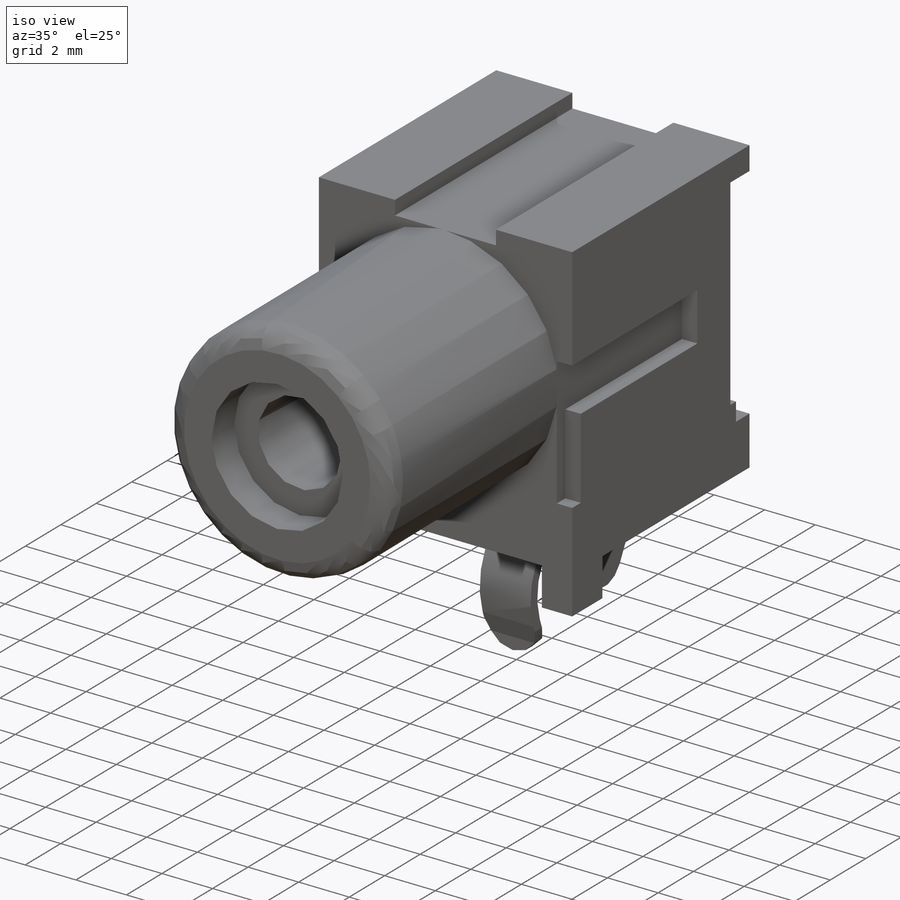
[diagram: iso view]
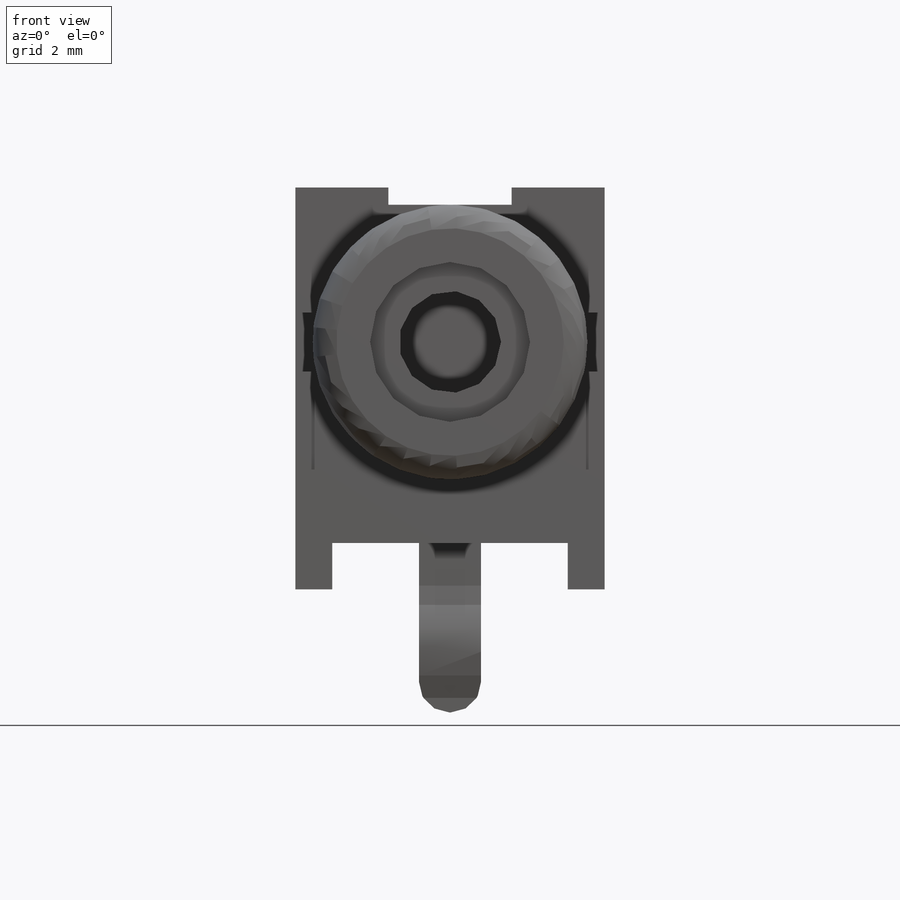
[diagram: front view]
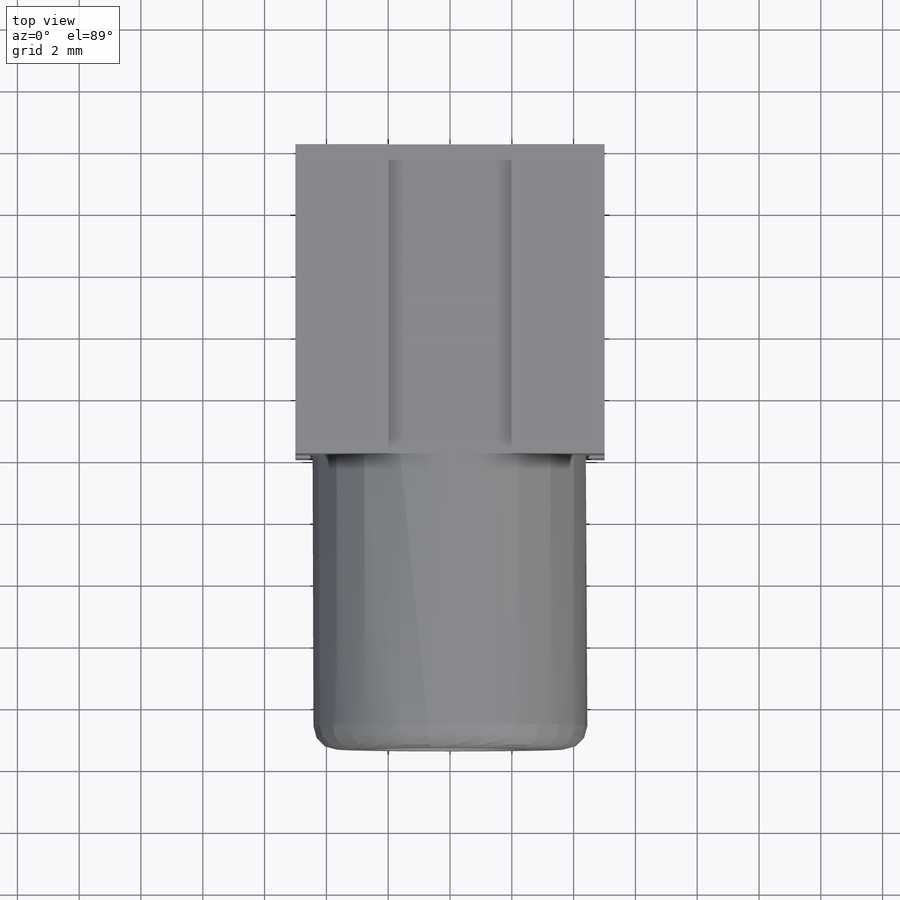
[diagram: top view]
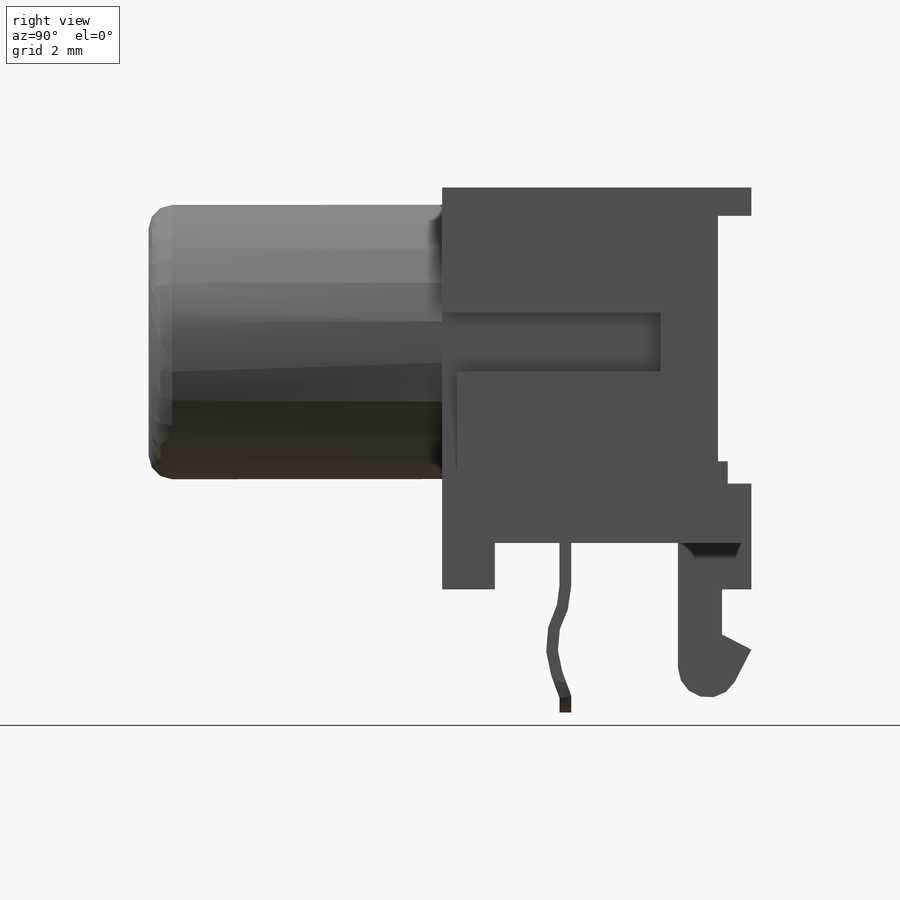
[diagram: right view]
SOLIDWORKS PART (.sldprt)
format: sldprt  version: not decoded by parser v0  size: 413,184 bytes
history: native  units: mm
features: sketch x14, cut_extrude x8, extrude x3, plane x2, fillet x2, material x1, mirror x1, sweep x1 (+11 scaffold rows collapsed)
feature tree (43):
  scaffold x11  (default folders/planes/origin — collapsed)
  material  "Material <not specified>"
  sketch  "Sketch1"  dims[D1=10.0076mm D2=13.0048mm]
  extrude  "Extrude1"  Depth=10.0076mm
  plane  "Plane1"  Offset=8.001mm
  sketch  "Sketch2"  dims[D2=8.89mm D1=8.001mm]
  extrude  "Extrude2"  Depth=9.4996mm
  fillet  "Fillet1"  Radius=0.762mm
  sketch  "Sketch3"  dims[D1=~3.29946mm D2=5.0038mm]
  cut_extrude  "Cut-Extrude1"  [1 undecoded]
  sketch  "Sketch4"  dims[D1=1.905mm D2=0.9525mm]
  cut_extrude  "Cut-Extrude2"  Depth=0.6096mm
  sketch  "Sketch5"
  cut_extrude  "Cut-Extrude3"  [1 undecoded]
  sketch  "Sketch6"  dims[D1=7.62mm D2=3.81mm D3=6.5024mm]
  cut_extrude  "Cut-Extrude4"  [1 undecoded]
  sketch  "Sketch7"  dims[D1=5.0038mm]
  cut_extrude  "Cut-Extrude5"  Depth=1.27mm
  sketch  "Sketch8"  dims[D1=3.9878mm D2=1.9939mm]
  cut_extrude  "Cut-Extrude6"  [1 undecoded]
  mirror  "Mirror1"
  sketch  "Sketch10"  dims[D1=6.5024mm]
  cut_extrude  "Cut-Extrude8"  [1 undecoded]
  sketch  "Sketch11"
  cut_extrude  "Cut-Extrude9"  [1 undecoded]
  plane  "Plane2"  Offset=3.9878mm
  sketch  "Sketch12"  dims[D1=2.0066mm D2=1.0033mm D3=0.381mm D4=0.1905mm]
  sketch  "Sketch13"  dims[c1.D3=2.54mm c1.D1=3.9878mm c1.D2=0.635mm c2.D1=3.9878mm c2.D4=0.508mm]
  sweep  "Sweep1"
  fillet  "Fillet2"  Radius=0.9906mm
  sketch  "Sketch14"  dims[D1=~2.378731mm D2=~0.952471mm D3=1.4986mm]
  extrude  "Extrude3"  Depth=0.508mm
  sketch  "PCB-Hole Layout"  dims[D1=2.2098mm D2=1.1938mm D3=0.5969mm D4=1.1049mm D5=2.2098mm D6=1.1938mm D7=0.5969mm D8=2.794mm]
decode coverage: 19 of 29 modeling features carry decoded parameters
note: ~ marks probable driven/reference dimensions
note: 6 parameter values undecoded
summary: no parameter record found for 6 features
note: suppression state not decoded; provenance and decode notes live in map.json
